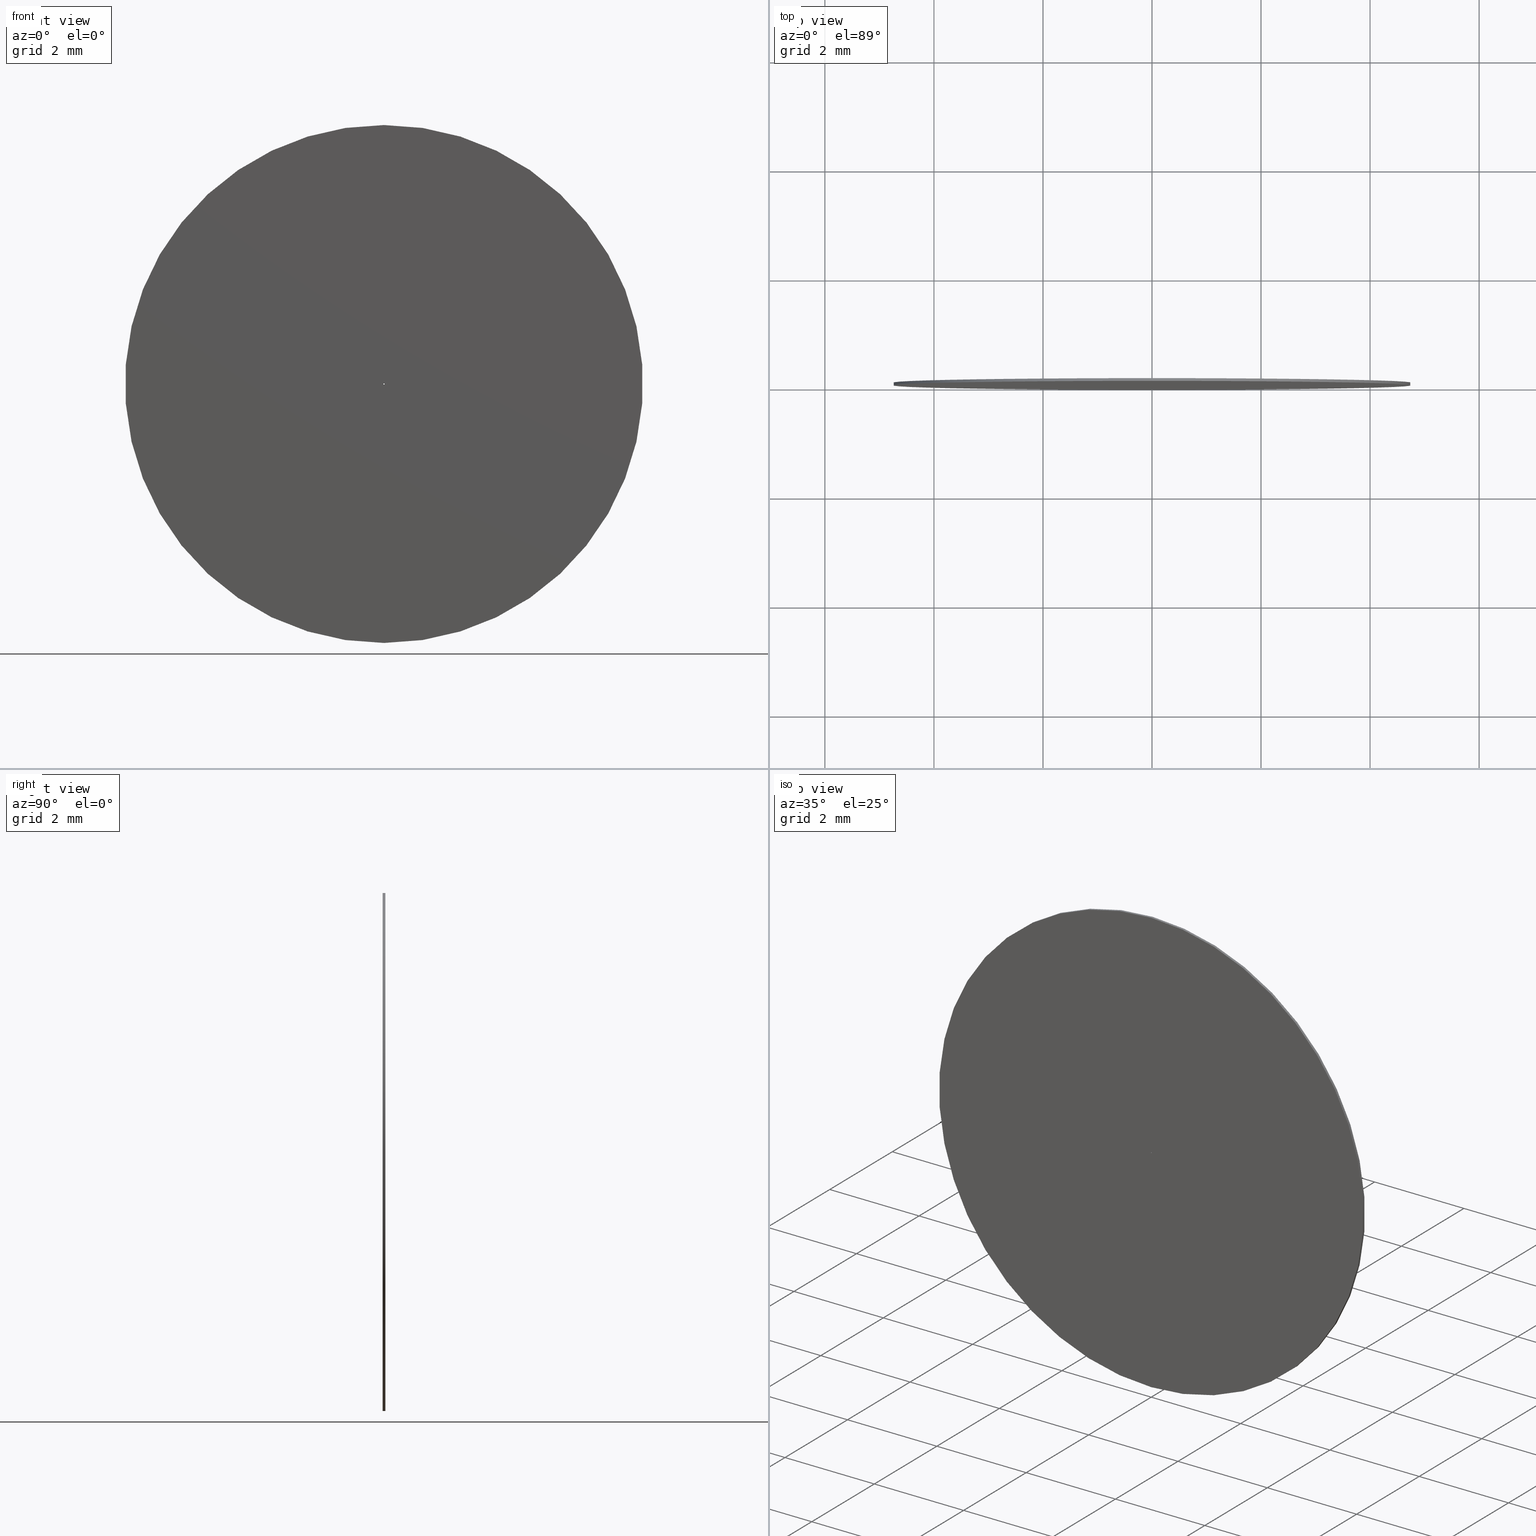
[diagram: canonical four-view strip — front | top / right | iso, engineering-drawing reading convention]
A machine part, canonical four-view strip (front | top / right | iso — engineering-drawing reading convention). The complete STEP part file that produces these views, byte-faithful:
ISO-10303-21;
HEADER;
FILE_DESCRIPTION (( 'STEP AP203' ),
    '1' );
FILE_NAME ('1.5.3.4-ZXO-9.5-20.STEP',
    '2024-05-31T06:05:31',
    ( '' ),
    ( '' ),
    'SwSTEP 2.0',
    'SolidWorks 2021',
    '' );
FILE_SCHEMA (( 'CONFIG_CONTROL_DESIGN' ));
ENDSEC;

DATA;
#1 = LOCAL_TIME ( 14, 5, 31.00000000000000000, #77 ) ;
#2 = ORIENTED_EDGE ( 'NONE', *, *, #48, .T. ) ;
#3 = EDGE_LOOP ( 'NONE', ( #198, #47, #125, #226 ) ) ;
#4 = ORIENTED_EDGE ( 'NONE', *, *, #246, .T. ) ;
#5 = DIRECTION ( 'NONE',  ( 0.000000000000000000, 1.000000000000000000, 0.000000000000000000 ) ) ;
#6 = ADVANCED_FACE ( 'NONE', ( #75 ), #179, .F. ) ;
#7 = CARTESIAN_POINT ( 'NONE',  ( 0.000000000000000000, 0.05000000000000000278, 0.000000000000000000 ) ) ;
#8 = APPROVAL_DATE_TIME ( #129, #242 ) ;
#9 = FACE_OUTER_BOUND ( 'NONE', #21, .T. ) ;
#10 = PRODUCT_DEFINITION_SHAPE ( 'NONE', 'NONE',  #12 ) ;
#11 = CARTESIAN_POINT ( 'NONE',  ( 0.000000000000000000, 0.000000000000000000, -0.01000000000000000021 ) ) ;
#12 = PRODUCT_DEFINITION ( 'δ֪', '', #94, #42 ) ;
#13 = APPLICATION_PROTOCOL_DEFINITION ( 'international standard', 'config_control_design', 1994, #175 ) ;
#14 = CARTESIAN_POINT ( 'NONE',  ( 0.000000000000000000, 0.05000000000000000278, 0.000000000000000000 ) ) ;
#15 = DIRECTION ( 'NONE',  ( -0.000000000000000000, -1.000000000000000000, -0.000000000000000000 ) ) ;
#16 = PERSON_AND_ORGANIZATION ( #135, #235 ) ;
#17 = CARTESIAN_POINT ( 'NONE',  ( 0.000000000000000000, 0.000000000000000000, 0.000000000000000000 ) ) ;
#18 = DIRECTION ( 'NONE',  ( 0.000000000000000000, 1.000000000000000000, 0.000000000000000000 ) ) ;
#19 = FACE_OUTER_BOUND ( 'NONE', #124, .T. ) ;
#20 = APPROVAL_DATE_TIME ( #35, #187 ) ;
#21 = EDGE_LOOP ( 'NONE', ( #165, #164 ) ) ;
#22 = AXIS2_PLACEMENT_3D ( 'NONE', #136, #121, #159 ) ;
#23 = LOCAL_TIME ( 14, 5, 31.00000000000000000, #140 ) ;
#24 = EDGE_LOOP ( 'NONE', ( #131, #2, #4, #199 ) ) ;
#25 = VERTEX_POINT ( 'NONE', #76 ) ;
#26 = AXIS2_PLACEMENT_3D ( 'NONE', #167, #166, #240 ) ;
#27 = DIRECTION ( 'NONE',  ( -0.000000000000000000, -1.000000000000000000, -0.000000000000000000 ) ) ;
#28 = EDGE_CURVE ( 'NONE', #69, #25, #176, .T. ) ;
#29 = MECHANICAL_CONTEXT ( 'NONE', #146, 'mechanical' ) ;
#30 = CARTESIAN_POINT ( 'NONE',  ( 5.817072295949927426E-16, 0.05000000000000000278, 4.750000000000000000 ) ) ;
#31 = PERSON_AND_ORGANIZATION ( #135, #235 ) ;
#32 = EDGE_LOOP ( 'NONE', ( #180, #157 ) ) ;
#33 = ORIENTED_EDGE ( 'NONE', *, *, #230, .T. ) ;
#34 = CARTESIAN_POINT ( 'NONE',  ( 0.000000000000000000, 0.05000000000000000278, -4.750000000000000000 ) ) ;
#35 = DATE_AND_TIME ( #117, #200 ) ;
#36 = CARTESIAN_POINT ( 'NONE',  ( 0.000000000000000000, 0.05000000000000000278, -4.750000000000000000 ) ) ;
#37 =( GEOMETRIC_REPRESENTATION_CONTEXT ( 3 ) GLOBAL_UNCERTAINTY_ASSIGNED_CONTEXT ( ( #102 ) ) GLOBAL_UNIT_ASSIGNED_CONTEXT ( ( #142, #169, #217 ) ) REPRESENTATION_CONTEXT ( 'NONE', 'WORKASPACE' ) );
#38 = CALENDAR_DATE ( 2024, 31, 5 ) ;
#39 = APPROVAL_ROLE ( '' ) ;
#40 = DATE_AND_TIME ( #61, #162 ) ;
#41 = EDGE_CURVE ( 'NONE', #111, #133, #79, .T. ) ;
#42 = DESIGN_CONTEXT ( 'detailed design', #175, 'design' ) ;
#43 = EDGE_CURVE ( 'NONE', #68, #92, #83, .T. ) ;
#44 = CLOSED_SHELL ( 'NONE', ( #154, #82, #57, #128, #86, #6 ) ) ;
#45 = AXIS2_PLACEMENT_3D ( 'NONE', #17, #171, #173 ) ;
#46 = ORIENTED_EDGE ( 'NONE', *, *, #144, .F. ) ;
#47 = ORIENTED_EDGE ( 'NONE', *, *, #43, .T. ) ;
#48 = EDGE_CURVE ( 'NONE', #227, #133, #55, .T. ) ;
#49 = DIRECTION ( 'NONE',  ( -0.000000000000000000, -1.000000000000000000, -0.000000000000000000 ) ) ;
#50 = ORIENTED_EDGE ( 'NONE', *, *, #48, .F. ) ;
#51 = LINE ( 'NONE', #34, #244 ) ;
#52 = ORIENTED_EDGE ( 'NONE', *, *, #28, .F. ) ;
#53 = APPROVAL_PERSON_ORGANIZATION ( #213, #205, #39 ) ;
#54 = PERSON_AND_ORGANIZATION ( #135, #235 ) ;
#55 = LINE ( 'NONE', #30, #87 ) ;
#56 = CARTESIAN_POINT ( 'NONE',  ( 0.000000000000000000, 0.05000000000000000278, 0.000000000000000000 ) ) ;
#57 = ADVANCED_FACE ( 'NONE', ( #9, #202 ), #89, .T. ) ;
#58 = APPROVAL_STATUS ( 'not_yet_approved' ) ;
#59 = CARTESIAN_POINT ( 'NONE',  ( 0.000000000000000000, 0.05000000000000000278, -0.01000000000000000021 ) ) ;
#60 = CIRCLE ( 'NONE', #239, 4.750000000000000000 ) ;
#61 = CALENDAR_DATE ( 2024, 31, 5 ) ;
#62 = APPLICATION_PROTOCOL_DEFINITION ( 'international standard', 'config_control_design', 1994, #146 ) ;
#63 = EDGE_CURVE ( 'NONE', #68, #25, #237, .T. ) ;
#64 = PERSON_AND_ORGANIZATION ( #135, #235 ) ;
#65 = PLANE ( 'NONE',  #98 ) ;
#66 = MANIFOLD_SOLID_BREP ( '͹̨-����1', #44 ) ;
#67 = AXIS2_PLACEMENT_3D ( 'NONE', #106, #150, #74 ) ;
#68 = VERTEX_POINT ( 'NONE', #107 ) ;
#69 = VERTEX_POINT ( 'NONE', #11 ) ;
#70 = APPROVAL_STATUS ( 'not_yet_approved' ) ;
#71 = FACE_OUTER_BOUND ( 'NONE', #24, .T. ) ;
#72 = CIRCLE ( 'NONE', #143, 0.01000000000000000021 ) ;
#73 = DIRECTION ( 'NONE',  ( 0.000000000000000000, 0.000000000000000000, 1.000000000000000000 ) ) ;
#74 = DIRECTION ( 'NONE',  ( 1.000000000000000000, 0.000000000000000000, 0.000000000000000000 ) ) ;
#75 = FACE_OUTER_BOUND ( 'NONE', #3, .T. ) ;
#76 = CARTESIAN_POINT ( 'NONE',  ( 1.224646799147353192E-18, 0.000000000000000000, 0.01000000000000000021 ) ) ;
#77 = COORDINATED_UNIVERSAL_TIME_OFFSET ( 8, 0, .AHEAD. ) ;
#78 = ORIENTED_EDGE ( 'NONE', *, *, #28, .T. ) ;
#79 = CIRCLE ( 'NONE', #208, 4.750000000000000000 ) ;
#80 = CC_DESIGN_APPROVAL ( #187, ( #134 ) ) ;
#81 = PERSON_AND_ORGANIZATION_ROLE ( 'classification_officer' ) ;
#82 = ADVANCED_FACE ( 'NONE', ( #71 ), #149, .T. ) ;
#83 = CIRCLE ( 'NONE', #126, 0.01000000000000000021 ) ;
#84 = ORIENTED_EDGE ( 'NONE', *, *, #63, .T. ) ;
#85 = DIRECTION ( 'NONE',  ( 0.000000000000000000, 1.000000000000000000, 0.000000000000000000 ) ) ;
#86 = ADVANCED_FACE ( 'NONE', ( #96 ), #93, .T. ) ;
#87 = VECTOR ( 'NONE', #152, 1000.000000000000000 ) ;
#88 = LOCAL_TIME ( 14, 5, 31.00000000000000000, #177 ) ;
#89 = PLANE ( 'NONE',  #101 ) ;
#90 = CALENDAR_DATE ( 2024, 31, 5 ) ;
#91 = EDGE_CURVE ( 'NONE', #201, #111, #51, .T. ) ;
#92 = VERTEX_POINT ( 'NONE', #59 ) ;
#93 = CYLINDRICAL_SURFACE ( 'NONE', #26, 4.750000000000000000 ) ;
#94 = PRODUCT_DEFINITION_FORMATION_WITH_SPECIFIED_SOURCE ( '�κ�', '', #147, .NOT_KNOWN. ) ;
#95 = ORIENTED_EDGE ( 'NONE', *, *, #212, .F. ) ;
#96 = FACE_OUTER_BOUND ( 'NONE', #234, .T. ) ;
#97 = DIRECTION ( 'NONE',  ( 0.000000000000000000, 0.000000000000000000, 1.000000000000000000 ) ) ;
#98 = AXIS2_PLACEMENT_3D ( 'NONE', #211, #247, #160 ) ;
#99 = SECURITY_CLASSIFICATION_LEVEL ( 'unclassified' ) ;
#100 = DIRECTION ( 'NONE',  ( 0.000000000000000000, 0.000000000000000000, 1.000000000000000000 ) ) ;
#101 = AXIS2_PLACEMENT_3D ( 'NONE', #14, #206, #209 ) ;
#102 = UNCERTAINTY_MEASURE_WITH_UNIT (LENGTH_MEASURE( 1.000000000000000082E-05 ), #142, 'distance_accuracy_value', 'NONE');
#103 = ORIENTED_EDGE ( 'NONE', *, *, #91, .T. ) ;
#104 = VECTOR ( 'NONE', #15, 1000.000000000000000 ) ;
#105 = EDGE_CURVE ( 'NONE', #92, #68, #72, .T. ) ;
#106 = CARTESIAN_POINT ( 'NONE',  ( 0.000000000000000000, 0.000000000000000000, 0.000000000000000000 ) ) ;
#107 = CARTESIAN_POINT ( 'NONE',  ( 1.224646799147353192E-18, 0.05000000000000000278, 0.01000000000000000021 ) ) ;
#108 = PERSON_AND_ORGANIZATION ( #135, #235 ) ;
#109 = ORIENTED_EDGE ( 'NONE', *, *, #246, .F. ) ;
#110 = PERSON_AND_ORGANIZATION_ROLE ( 'creator' ) ;
#111 = VERTEX_POINT ( 'NONE', #192 ) ;
#112 = ORIENTED_EDGE ( 'NONE', *, *, #41, .F. ) ;
#113 = CARTESIAN_POINT ( 'NONE',  ( 0.000000000000000000, 0.000000000000000000, 0.000000000000000000 ) ) ;
#114 = CARTESIAN_POINT ( 'NONE',  ( 0.000000000000000000, 0.05000000000000000278, 0.000000000000000000 ) ) ;
#115 = APPROVAL_PERSON_ORGANIZATION ( #54, #187, #185 ) ;
#116 = PRODUCT_RELATED_PRODUCT_CATEGORY ( 'detail', '', ( #147 ) ) ;
#117 = CALENDAR_DATE ( 2024, 31, 5 ) ;
#118 = APPROVAL_STATUS ( 'not_yet_approved' ) ;
#119 = CYLINDRICAL_SURFACE ( 'NONE', #22, 0.01000000000000000021 ) ;
#120 = PERSON_AND_ORGANIZATION_ROLE ( 'creator' ) ;
#121 = DIRECTION ( 'NONE',  ( -0.000000000000000000, -1.000000000000000000, -0.000000000000000000 ) ) ;
#122 = CC_DESIGN_SECURITY_CLASSIFICATION ( #134, ( #94 ) ) ;
#123 = CC_DESIGN_PERSON_AND_ORGANIZATION_ASSIGNMENT ( #245, #196, ( #94 ) ) ;
#124 = EDGE_LOOP ( 'NONE', ( #112, #109 ) ) ;
#125 = ORIENTED_EDGE ( 'NONE', *, *, #144, .T. ) ;
#126 = AXIS2_PLACEMENT_3D ( 'NONE', #130, #241, #73 ) ;
#127 = DIRECTION ( 'NONE',  ( -0.000000000000000000, -1.000000000000000000, -0.000000000000000000 ) ) ;
#128 = ADVANCED_FACE ( 'NONE', ( #19, #186 ), #65, .F. ) ;
#129 = DATE_AND_TIME ( #90, #88 ) ;
#130 = CARTESIAN_POINT ( 'NONE',  ( 0.000000000000000000, 0.05000000000000000278, 0.000000000000000000 ) ) ;
#131 = ORIENTED_EDGE ( 'NONE', *, *, #170, .F. ) ;
#132 = CC_DESIGN_DATE_AND_TIME_ASSIGNMENT ( #137, #158, ( #12 ) ) ;
#133 = VERTEX_POINT ( 'NONE', #218 ) ;
#134 = SECURITY_CLASSIFICATION ( '', '', #99 ) ;
#135 = PERSON ( 'δָ��', 'δָ��', 'δָ��', ('δָ��'), ('δָ��'), ('δָ��') ) ;
#136 = CARTESIAN_POINT ( 'NONE',  ( 0.000000000000000000, 0.05000000000000000278, 0.000000000000000000 ) ) ;
#137 = DATE_AND_TIME ( #191, #1 ) ;
#138 = DIRECTION ( 'NONE',  ( 0.000000000000000000, 0.000000000000000000, 1.000000000000000000 ) ) ;
#139 = CIRCLE ( 'NONE', #151, 4.750000000000000000 ) ;
#140 = COORDINATED_UNIVERSAL_TIME_OFFSET ( 8, 0, .AHEAD. ) ;
#141 = CARTESIAN_POINT ( 'NONE',  ( 0.000000000000000000, 0.05000000000000000278, -0.01000000000000000021 ) ) ;
#142 =( LENGTH_UNIT ( ) NAMED_UNIT ( * ) SI_UNIT ( .MILLI., .METRE. ) );
#143 = AXIS2_PLACEMENT_3D ( 'NONE', #214, #85, #138 ) ;
#144 = EDGE_CURVE ( 'NONE', #92, #69, #231, .T. ) ;
#145 = CIRCLE ( 'NONE', #221, 0.01000000000000000021 ) ;
#146 = APPLICATION_CONTEXT ( 'configuration controlled 3d designs of mechanical parts and assemblies' ) ;
#147 = PRODUCT ( '1.5.3.4-ZXO-9.5-20', '1.5.3.4-ZXO-9.5-20', '', ( #29 ) ) ;
#148 = APPROVAL_ROLE ( '' ) ;
#149 = CYLINDRICAL_SURFACE ( 'NONE', #216, 4.750000000000000000 ) ;
#150 = DIRECTION ( 'NONE',  ( 0.000000000000000000, 0.000000000000000000, 1.000000000000000000 ) ) ;
#151 = AXIS2_PLACEMENT_3D ( 'NONE', #56, #197, #194 ) ;
#152 = DIRECTION ( 'NONE',  ( -0.000000000000000000, -1.000000000000000000, -0.000000000000000000 ) ) ;
#153 = CARTESIAN_POINT ( 'NONE',  ( 0.000000000000000000, 0.000000000000000000, 0.000000000000000000 ) ) ;
#154 = ADVANCED_FACE ( 'NONE', ( #229 ), #119, .F. ) ;
#155 = DIRECTION ( 'NONE',  ( 0.000000000000000000, 0.000000000000000000, -1.000000000000000000 ) ) ;
#156 = CC_DESIGN_APPROVAL ( #205, ( #94 ) ) ;
#157 = ORIENTED_EDGE ( 'NONE', *, *, #43, .F. ) ;
#158 = DATE_TIME_ROLE ( 'creation_date' ) ;
#159 = DIRECTION ( 'NONE',  ( 0.000000000000000000, 0.000000000000000000, -1.000000000000000000 ) ) ;
#160 = DIRECTION ( 'NONE',  ( 0.000000000000000000, -0.000000000000000000, 1.000000000000000000 ) ) ;
#161 = CARTESIAN_POINT ( 'NONE',  ( 5.817072295949927426E-16, 0.05000000000000000278, 4.750000000000000000 ) ) ;
#162 = LOCAL_TIME ( 14, 5, 31.00000000000000000, #215 ) ;
#163 = CC_DESIGN_DATE_AND_TIME_ASSIGNMENT ( #193, #210, ( #134 ) ) ;
#164 = ORIENTED_EDGE ( 'NONE', *, *, #170, .T. ) ;
#165 = ORIENTED_EDGE ( 'NONE', *, *, #212, .T. ) ;
#166 = DIRECTION ( 'NONE',  ( -0.000000000000000000, -1.000000000000000000, -0.000000000000000000 ) ) ;
#167 = CARTESIAN_POINT ( 'NONE',  ( 0.000000000000000000, 0.05000000000000000278, 0.000000000000000000 ) ) ;
#168 = EDGE_LOOP ( 'NONE', ( #78, #33 ) ) ;
#169 =( NAMED_UNIT ( * ) PLANE_ANGLE_UNIT ( ) SI_UNIT ( $, .RADIAN. ) );
#170 = EDGE_CURVE ( 'NONE', #227, #201, #139, .T. ) ;
#171 = DIRECTION ( 'NONE',  ( 0.000000000000000000, 1.000000000000000000, 0.000000000000000000 ) ) ;
#172 = SHAPE_DEFINITION_REPRESENTATION ( #10, #225 ) ;
#173 = DIRECTION ( 'NONE',  ( 0.000000000000000000, 0.000000000000000000, 1.000000000000000000 ) ) ;
#174 = CC_DESIGN_APPROVAL ( #242, ( #12 ) ) ;
#175 = APPLICATION_CONTEXT ( 'configuration controlled 3d designs of mechanical parts and assemblies' ) ;
#176 = CIRCLE ( 'NONE', #220, 0.01000000000000000021 ) ;
#177 = COORDINATED_UNIVERSAL_TIME_OFFSET ( 8, 0, .AHEAD. ) ;
#178 = ORIENTED_EDGE ( 'NONE', *, *, #41, .T. ) ;
#179 = CYLINDRICAL_SURFACE ( 'NONE', #181, 0.01000000000000000021 ) ;
#180 = ORIENTED_EDGE ( 'NONE', *, *, #105, .F. ) ;
#181 = AXIS2_PLACEMENT_3D ( 'NONE', #7, #49, #207 ) ;
#182 = CARTESIAN_POINT ( 'NONE',  ( 1.224646799147353192E-18, 0.05000000000000000278, 0.01000000000000000021 ) ) ;
#183 = PERSON_AND_ORGANIZATION_ROLE ( 'design_owner' ) ;
#184 = DIRECTION ( 'NONE',  ( -0.000000000000000000, -1.000000000000000000, -0.000000000000000000 ) ) ;
#185 = APPROVAL_ROLE ( '' ) ;
#186 = FACE_BOUND ( 'NONE', #168, .T. ) ;
#187 = APPROVAL ( #118, 'δָ��' ) ;
#188 = APPROVAL_DATE_TIME ( #40, #205 ) ;
#189 = VECTOR ( 'NONE', #27, 1000.000000000000000 ) ;
#190 = DIRECTION ( 'NONE',  ( 0.000000000000000000, 1.000000000000000000, 0.000000000000000000 ) ) ;
#191 = CALENDAR_DATE ( 2024, 31, 5 ) ;
#192 = CARTESIAN_POINT ( 'NONE',  ( 0.000000000000000000, 0.000000000000000000, -4.750000000000000000 ) ) ;
#193 = DATE_AND_TIME ( #38, #23 ) ;
#194 = DIRECTION ( 'NONE',  ( 0.000000000000000000, 0.000000000000000000, 1.000000000000000000 ) ) ;
#195 = CC_DESIGN_PERSON_AND_ORGANIZATION_ASSIGNMENT ( #16, #120, ( #94 ) ) ;
#196 = PERSON_AND_ORGANIZATION_ROLE ( 'design_supplier' ) ;
#197 = DIRECTION ( 'NONE',  ( 0.000000000000000000, 1.000000000000000000, 0.000000000000000000 ) ) ;
#198 = ORIENTED_EDGE ( 'NONE', *, *, #63, .F. ) ;
#199 = ORIENTED_EDGE ( 'NONE', *, *, #91, .F. ) ;
#200 = LOCAL_TIME ( 14, 5, 31.00000000000000000, #248 ) ;
#201 = VERTEX_POINT ( 'NONE', #36 ) ;
#202 = FACE_BOUND ( 'NONE', #32, .T. ) ;
#203 = APPROVAL_PERSON_ORGANIZATION ( #236, #242, #148 ) ;
#204 = DIRECTION ( 'NONE',  ( 0.000000000000000000, 0.000000000000000000, 1.000000000000000000 ) ) ;
#205 = APPROVAL ( #58, 'δָ��' ) ;
#206 = DIRECTION ( 'NONE',  ( 0.000000000000000000, 1.000000000000000000, 0.000000000000000000 ) ) ;
#207 = DIRECTION ( 'NONE',  ( 0.000000000000000000, 0.000000000000000000, -1.000000000000000000 ) ) ;
#208 = AXIS2_PLACEMENT_3D ( 'NONE', #153, #5, #224 ) ;
#209 = DIRECTION ( 'NONE',  ( 0.000000000000000000, -0.000000000000000000, 1.000000000000000000 ) ) ;
#210 = DATE_TIME_ROLE ( 'classification_date' ) ;
#211 = CARTESIAN_POINT ( 'NONE',  ( 0.000000000000000000, 0.000000000000000000, 0.000000000000000000 ) ) ;
#212 = EDGE_CURVE ( 'NONE', #201, #227, #60, .T. ) ;
#213 = PERSON_AND_ORGANIZATION ( #135, #235 ) ;
#214 = CARTESIAN_POINT ( 'NONE',  ( 0.000000000000000000, 0.05000000000000000278, 0.000000000000000000 ) ) ;
#215 = COORDINATED_UNIVERSAL_TIME_OFFSET ( 8, 0, .AHEAD. ) ;
#216 = AXIS2_PLACEMENT_3D ( 'NONE', #223, #127, #155 ) ;
#217 =( NAMED_UNIT ( * ) SI_UNIT ( $, .STERADIAN. ) SOLID_ANGLE_UNIT ( ) );
#218 = CARTESIAN_POINT ( 'NONE',  ( 5.817072295949927426E-16, 0.000000000000000000, 4.750000000000000000 ) ) ;
#219 = CARTESIAN_POINT ( 'NONE',  ( 0.000000000000000000, 0.000000000000000000, 0.000000000000000000 ) ) ;
#220 = AXIS2_PLACEMENT_3D ( 'NONE', #113, #228, #204 ) ;
#221 = AXIS2_PLACEMENT_3D ( 'NONE', #219, #18, #97 ) ;
#222 = CC_DESIGN_PERSON_AND_ORGANIZATION_ASSIGNMENT ( #31, #110, ( #12 ) ) ;
#223 = CARTESIAN_POINT ( 'NONE',  ( 0.000000000000000000, 0.05000000000000000278, 0.000000000000000000 ) ) ;
#224 = DIRECTION ( 'NONE',  ( 0.000000000000000000, 0.000000000000000000, 1.000000000000000000 ) ) ;
#225 = ADVANCED_BREP_SHAPE_REPRESENTATION ( '1.5.3.4-ZXO-9.5-20', ( #66, #67 ), #37 ) ;
#226 = ORIENTED_EDGE ( 'NONE', *, *, #230, .F. ) ;
#227 = VERTEX_POINT ( 'NONE', #161 ) ;
#228 = DIRECTION ( 'NONE',  ( 0.000000000000000000, 1.000000000000000000, 0.000000000000000000 ) ) ;
#229 = FACE_OUTER_BOUND ( 'NONE', #238, .T. ) ;
#230 = EDGE_CURVE ( 'NONE', #25, #69, #145, .T. ) ;
#231 = LINE ( 'NONE', #141, #104 ) ;
#232 = CC_DESIGN_PERSON_AND_ORGANIZATION_ASSIGNMENT ( #64, #81, ( #134 ) ) ;
#233 = CIRCLE ( 'NONE', #45, 4.750000000000000000 ) ;
#234 = EDGE_LOOP ( 'NONE', ( #50, #95, #103, #178 ) ) ;
#235 = ORGANIZATION ( 'δָ��', 'δָ��', '' ) ;
#236 = PERSON_AND_ORGANIZATION ( #135, #235 ) ;
#237 = LINE ( 'NONE', #182, #189 ) ;
#238 = EDGE_LOOP ( 'NONE', ( #243, #84, #52, #46 ) ) ;
#239 = AXIS2_PLACEMENT_3D ( 'NONE', #114, #190, #100 ) ;
#240 = DIRECTION ( 'NONE',  ( 0.000000000000000000, 0.000000000000000000, -1.000000000000000000 ) ) ;
#241 = DIRECTION ( 'NONE',  ( 0.000000000000000000, 1.000000000000000000, 0.000000000000000000 ) ) ;
#242 = APPROVAL ( #70, 'δָ��' ) ;
#243 = ORIENTED_EDGE ( 'NONE', *, *, #105, .T. ) ;
#244 = VECTOR ( 'NONE', #184, 1000.000000000000000 ) ;
#245 = PERSON_AND_ORGANIZATION ( #135, #235 ) ;
#246 = EDGE_CURVE ( 'NONE', #133, #111, #233, .T. ) ;
#247 = DIRECTION ( 'NONE',  ( 0.000000000000000000, 1.000000000000000000, 0.000000000000000000 ) ) ;
#248 = COORDINATED_UNIVERSAL_TIME_OFFSET ( 8, 0, .AHEAD. ) ;
#249 = CC_DESIGN_PERSON_AND_ORGANIZATION_ASSIGNMENT ( #108, #183, ( #147 ) ) ;
ENDSEC;
END-ISO-10303-21;
